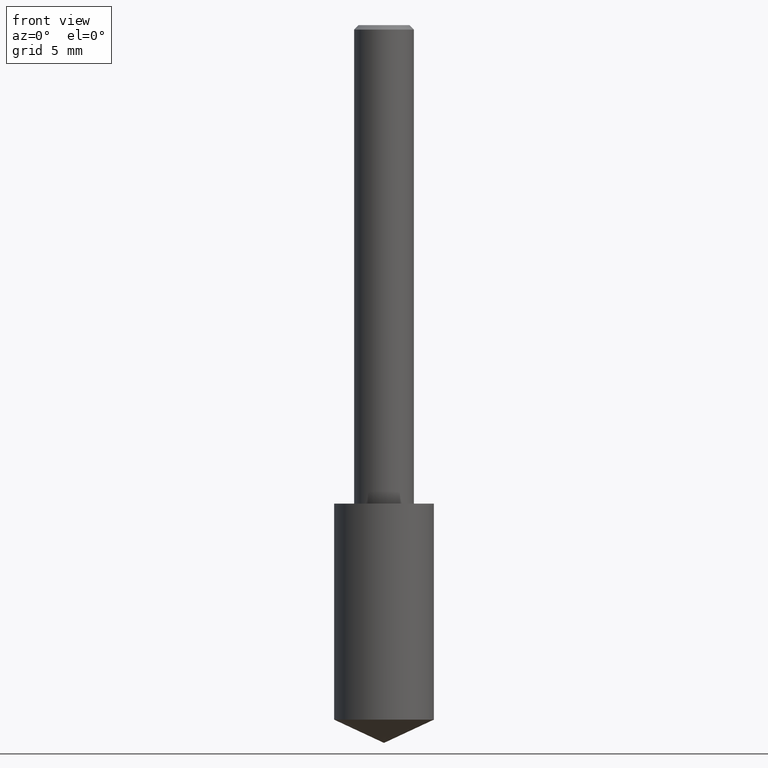
[diagram: clean part render]
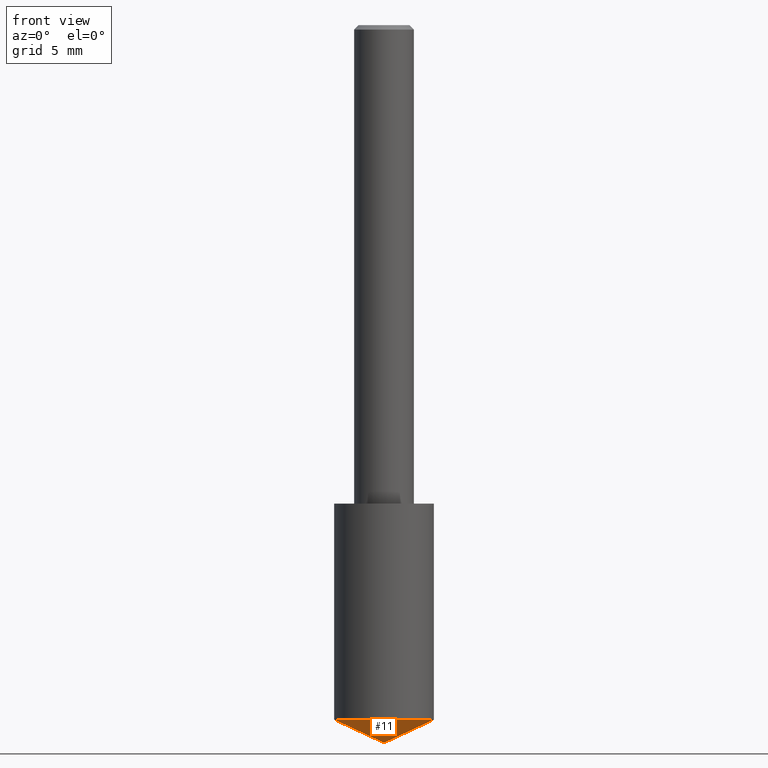
[diagram: same view with one face highlighted and labeled with its STEP entity id]
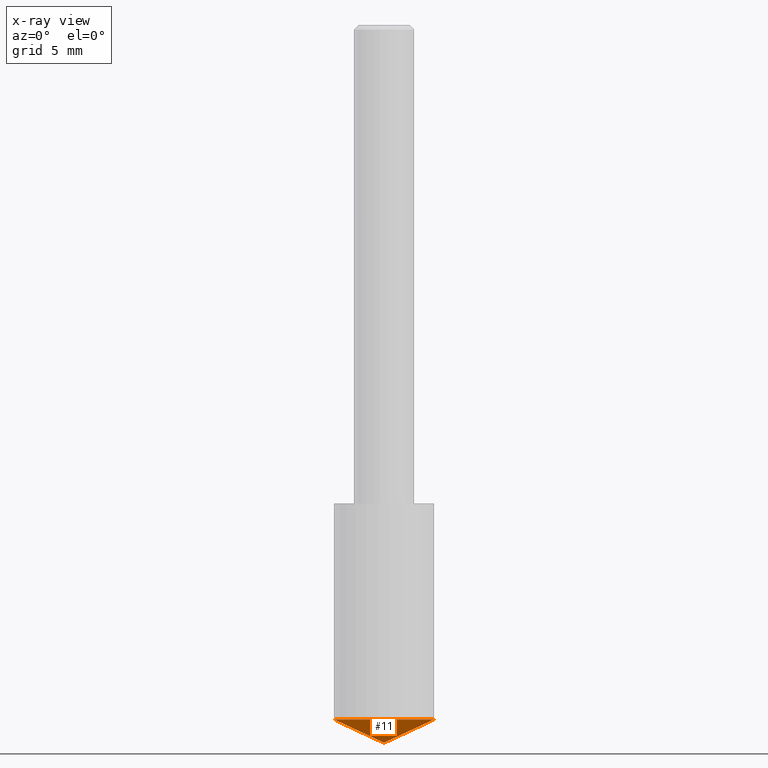
[diagram: x-ray of the same camera — body ghosted, the highlighted face saturated]
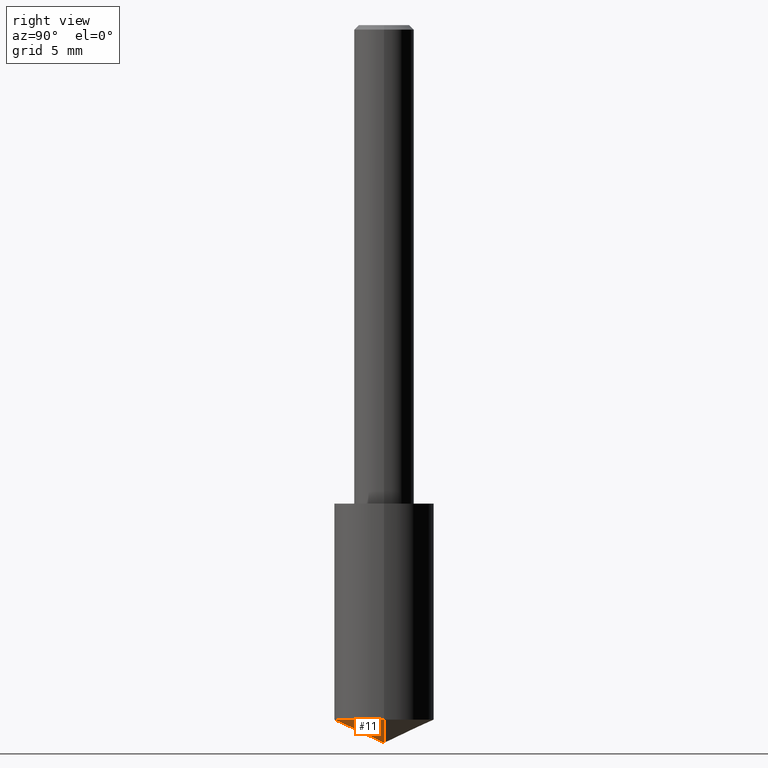
[diagram: same view with one face highlighted and labeled with its STEP entity id]
A machine part, front view. The second image highlights one B-rep face of the part: STEP entity #11.
The next image is the same camera in x-ray: the body ghosted, the highlighted face saturated — about 0% of this face is hidden behind the body in this view.
A second angle (right view) of the same face is appended — the face is thin or edge-on in the first view.
In plain terms, the highlighted conical surface has half-angle 65 deg.
Its self-contained STEP definition (entity closure, byte-faithful):
#11 = ADVANCED_FACE ( 'NONE', ( #182 ), #265, .T. ) ;
#17 = CARTESIAN_POINT ( 'NONE',  ( 3.549208643447727704E-29, -5.067329305087193163E-15, -1.451340795871526312 ) ) ;
#19 = DIRECTION ( 'NONE',  ( -2.445468806185136597E-29, 3.491481338843145583E-15, 1.000000000000000000 ) ) ;
#25 = LINE ( 'NONE', #287, #155 ) ;
#35 = VERTEX_POINT ( 'NONE', #311 ) ;
#42 = VECTOR ( 'NONE', #307, 39.37007874015748854 ) ;
#45 = LINE ( 'NONE', #101, #42 ) ;
#50 = EDGE_CURVE ( 'NONE', #250, #333, #45, .T. ) ;
#86 = DIRECTION ( 'NONE',  ( -0.9063077870366510469, 7.915267918739014631E-15, 0.4226182617406970543 ) ) ;
#101 = CARTESIAN_POINT ( 'NONE',  ( 3.668203209277704895E-29, -5.237222008264718177E-15, -1.500000000000000222 ) ) ;
#122 = ORIENTED_EDGE ( 'NONE', *, *, #158, .F. ) ;
#129 = ORIENTED_EDGE ( 'NONE', *, *, #286, .F. ) ;
#131 = DIRECTION ( 'NONE',  ( 1.000000000000000000, -6.982962677686267499E-15, 0.000000000000000000 ) ) ;
#132 = AXIS2_PLACEMENT_3D ( 'NONE', #285, #19, #131 ) ;
#143 = AXIS2_PLACEMENT_3D ( 'NONE', #17, #227, #310 ) ;
#155 = VECTOR ( 'NONE', #86, 39.37007874015748854 ) ;
#157 = CARTESIAN_POINT ( 'NONE',  ( 3.668203209277704895E-29, -5.237222008264718177E-15, -1.500000000000000222 ) ) ;
#158 = EDGE_CURVE ( 'NONE', #250, #35, #25, .T. ) ;
#166 = CIRCLE ( 'NONE', #143, 0.1043499999999999844 ) ;
#182 = FACE_OUTER_BOUND ( 'NONE', #193, .T. ) ;
#193 = EDGE_LOOP ( 'NONE', ( #122, #302, #129 ) ) ;
#227 = DIRECTION ( 'NONE',  ( -2.445468806185136597E-29, 3.491481338843145583E-15, 1.000000000000000000 ) ) ;
#229 = CARTESIAN_POINT ( 'NONE',  ( 0.1043499999999999706, -5.796001460503755574E-15, -1.451340795871526312 ) ) ;
#250 = VERTEX_POINT ( 'NONE', #157 ) ;
#265 = CONICAL_SURFACE ( 'NONE', #132, 84.42940631927456252, 1.134464013796316895 ) ;
#285 = CARTESIAN_POINT ( 'NONE',  ( -9.261009624683002666E-28, 1.322226732217803884E-13, 37.87007874015748143 ) ) ;
#286 = EDGE_CURVE ( 'NONE', #35, #333, #166, .T. ) ;
#287 = CARTESIAN_POINT ( 'NONE',  ( 3.668203209277704895E-29, -5.237222008264718177E-15, -1.500000000000000222 ) ) ;
#302 = ORIENTED_EDGE ( 'NONE', *, *, #50, .T. ) ;
#307 = DIRECTION ( 'NONE',  ( 0.9063077870366510469, -4.853149677051396145E-15, 0.4226182617406970543 ) ) ;
#310 = DIRECTION ( 'NONE',  ( 1.000000000000000000, -6.982962677686263555E-15, 0.000000000000000000 ) ) ;
#311 = CARTESIAN_POINT ( 'NONE',  ( -0.1043499999999999706, -4.325877960321529026E-15, -1.451340795871526312 ) ) ;
#333 = VERTEX_POINT ( 'NONE', #229 ) ;